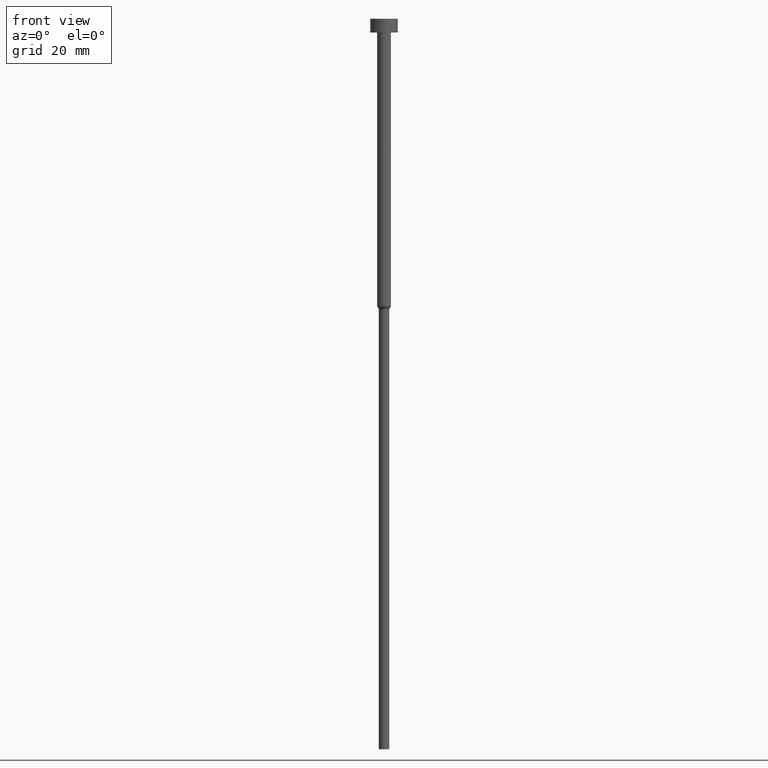
[diagram: clean part render]
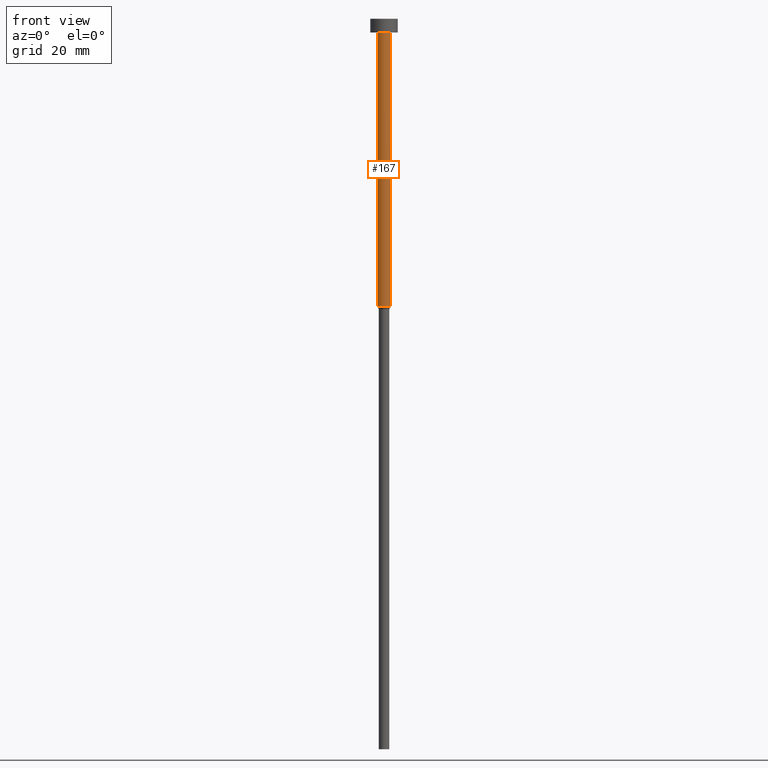
[diagram: same view with one face highlighted and labeled with its STEP entity id]
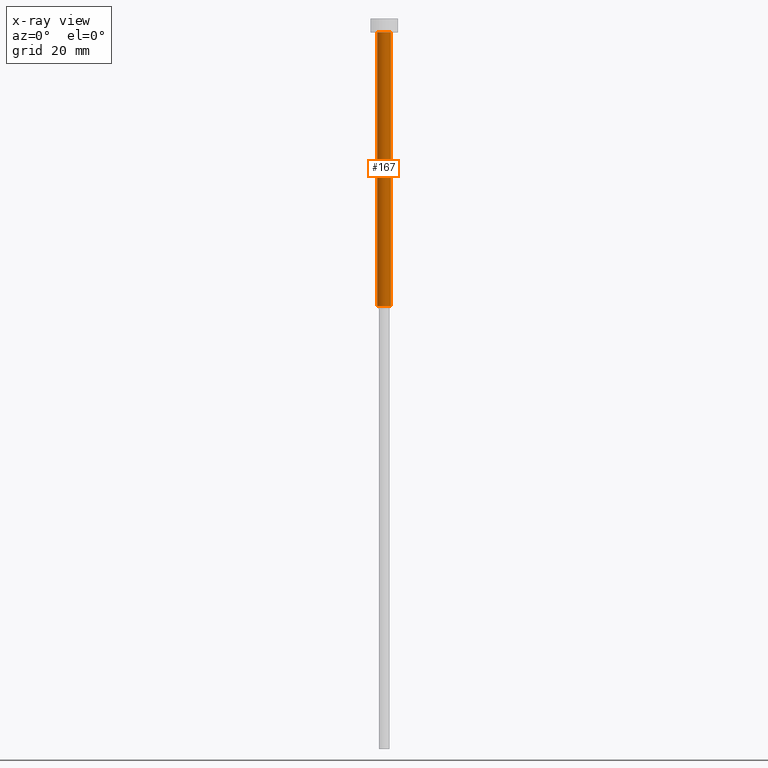
[diagram: x-ray of the same camera — body ghosted, the highlighted face saturated]
A machine part, front view. The second image highlights one B-rep face of the part: STEP entity #167.
The next image is the same camera in x-ray: the body ghosted, the highlighted face saturated — about 0% of this face is hidden behind the body in this view.
In plain terms, the highlighted cylindrical surface (edge-blend (fillet) strip) has radius 1.5 mm, axis along (-0, -0, 1).
Its self-contained STEP definition (entity closure, byte-faithful):
#4 = CARTESIAN_POINT ( 'NONE',  ( 1.500000000000000000, 0.000000000000000000, -63.00000000000000000 ) ) ;
#12 = DIRECTION ( 'NONE',  ( -0.000000000000000000, -0.000000000000000000, 1.000000000000000000 ) ) ;
#23 = VECTOR ( 'NONE', #336, 1000.000000000000000 ) ;
#27 = ORIENTED_EDGE ( 'NONE', *, *, #93, .T. ) ;
#35 = CARTESIAN_POINT ( 'NONE',  ( 0.000000000000000000, 0.000000000000000000, -63.00000000000000000 ) ) ;
#57 = ORIENTED_EDGE ( 'NONE', *, *, #344, .F. ) ;
#62 = VERTEX_POINT ( 'NONE', #140 ) ;
#70 = DIRECTION ( 'NONE',  ( 1.000000000000000000, 0.000000000000000000, 0.000000000000000000 ) ) ;
#78 = AXIS2_PLACEMENT_3D ( 'NONE', #121, #254, #70 ) ;
#81 = EDGE_LOOP ( 'NONE', ( #113, #27, #294, #57 ) ) ;
#90 = VERTEX_POINT ( 'NONE', #4 ) ;
#93 = EDGE_CURVE ( 'NONE', #116, #90, #221, .T. ) ;
#110 = VERTEX_POINT ( 'NONE', #235 ) ;
#113 = ORIENTED_EDGE ( 'NONE', *, *, #236, .F. ) ;
#114 = VECTOR ( 'NONE', #12, 1000.000000000000000 ) ;
#116 = VERTEX_POINT ( 'NONE', #282 ) ;
#121 = CARTESIAN_POINT ( 'NONE',  ( 0.000000000000000000, 0.000000000000000000, 0.000000000000000000 ) ) ;
#122 = LINE ( 'NONE', #238, #23 ) ;
#124 = LINE ( 'NONE', #261, #114 ) ;
#130 = CIRCLE ( 'NONE', #260, 1.500000000000000000 ) ;
#132 = EDGE_CURVE ( 'NONE', #90, #110, #124, .T. ) ;
#140 = CARTESIAN_POINT ( 'NONE',  ( -1.500000000000000000, 1.836970198721029934E-16, -3.000000000000000888 ) ) ;
#156 = CARTESIAN_POINT ( 'NONE',  ( 0.000000000000000000, 0.000000000000000000, -3.000000000000000888 ) ) ;
#167 = ADVANCED_FACE ( 'NONE', ( #307 ), #177, .T. ) ;
#177 = CYLINDRICAL_SURFACE ( 'NONE', #78, 1.500000000000000000 ) ;
#217 = DIRECTION ( 'NONE',  ( -0.000000000000000000, -0.000000000000000000, 1.000000000000000000 ) ) ;
#221 = CIRCLE ( 'NONE', #327, 1.500000000000000000 ) ;
#235 = CARTESIAN_POINT ( 'NONE',  ( 1.500000000000000000, 0.000000000000000000, -3.000000000000000888 ) ) ;
#236 = EDGE_CURVE ( 'NONE', #116, #62, #122, .T. ) ;
#238 = CARTESIAN_POINT ( 'NONE',  ( -1.500000000000000000, 1.836970198721029934E-16, 0.000000000000000000 ) ) ;
#254 = DIRECTION ( 'NONE',  ( -0.000000000000000000, -0.000000000000000000, 1.000000000000000000 ) ) ;
#258 = DIRECTION ( 'NONE',  ( -0.000000000000000000, -0.000000000000000000, 1.000000000000000000 ) ) ;
#260 = AXIS2_PLACEMENT_3D ( 'NONE', #156, #217, #342 ) ;
#261 = CARTESIAN_POINT ( 'NONE',  ( 1.500000000000000000, 0.000000000000000000, 0.000000000000000000 ) ) ;
#282 = CARTESIAN_POINT ( 'NONE',  ( -1.500000000000000000, 1.836970198721029934E-16, -63.00000000000000000 ) ) ;
#294 = ORIENTED_EDGE ( 'NONE', *, *, #132, .T. ) ;
#307 = FACE_OUTER_BOUND ( 'NONE', #81, .T. ) ;
#310 = DIRECTION ( 'NONE',  ( 1.000000000000000000, 0.000000000000000000, 0.000000000000000000 ) ) ;
#327 = AXIS2_PLACEMENT_3D ( 'NONE', #35, #258, #310 ) ;
#336 = DIRECTION ( 'NONE',  ( -0.000000000000000000, -0.000000000000000000, 1.000000000000000000 ) ) ;
#342 = DIRECTION ( 'NONE',  ( 1.000000000000000000, 0.000000000000000000, 0.000000000000000000 ) ) ;
#344 = EDGE_CURVE ( 'NONE', #62, #110, #130, .T. ) ;